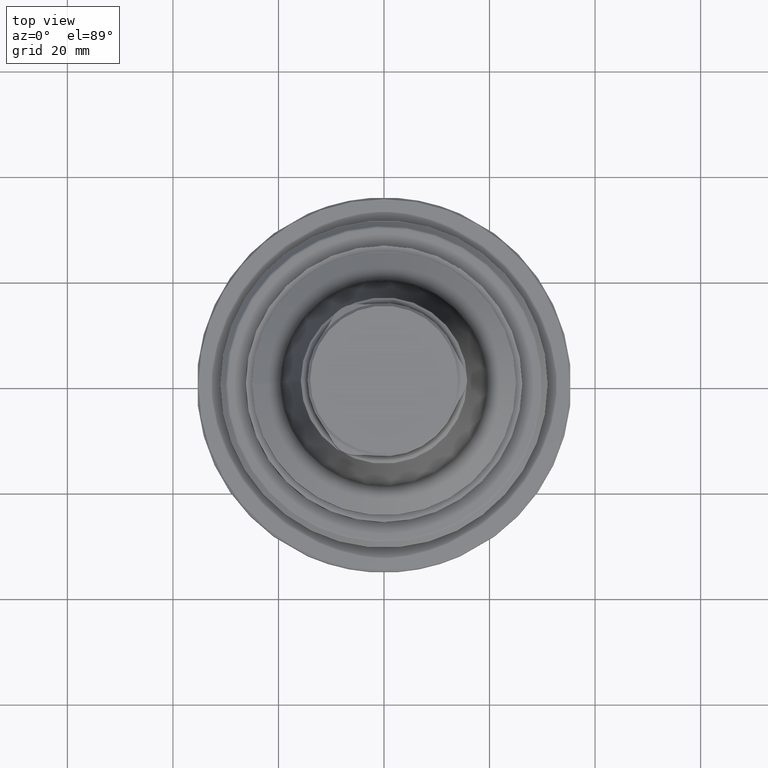
[diagram: clean part render]
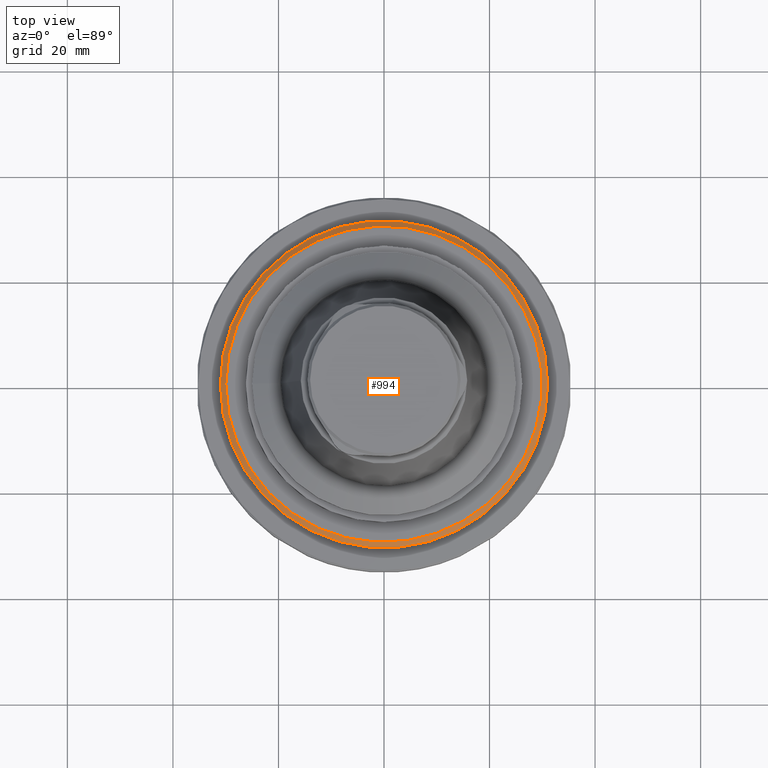
[diagram: same view with one face highlighted and labeled with its STEP entity id]
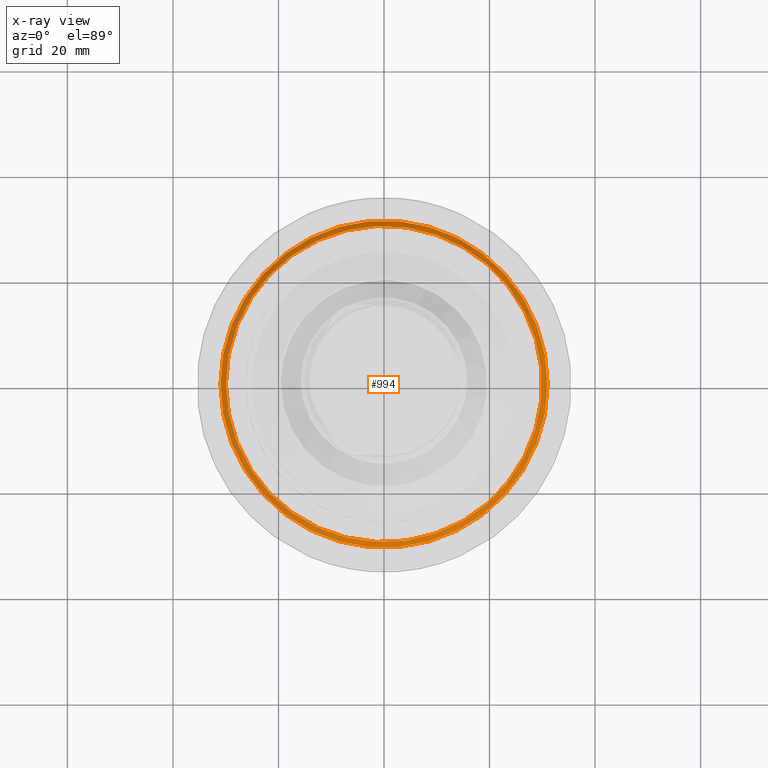
[diagram: x-ray of the same camera — body ghosted, the highlighted face saturated]
A machine part, top view. The second image highlights one B-rep face of the part: STEP entity #994.
The next image is the same camera in x-ray: the body ghosted, the highlighted face saturated — about 0% of this face is hidden behind the body in this view.
In plain terms, the highlighted conical surface has half-angle 45 deg.
Its self-contained STEP definition (entity closure, byte-faithful):
#39=CONICAL_SURFACE('',#1127,29.9757350979542,0.785398163397448);
#167=CIRCLE('',#1126,29.9757350979542);
#168=CIRCLE('',#1128,31.);
#460=ORIENTED_EDGE('',*,*,#611,.F.);
#461=ORIENTED_EDGE('',*,*,#610,.T.);
#610=EDGE_CURVE('',#709,#709,#167,.T.);
#611=EDGE_CURVE('',#710,#710,#168,.T.);
#709=VERTEX_POINT('',#1872);
#710=VERTEX_POINT('',#1875);
#796=EDGE_LOOP('',(#460));
#797=EDGE_LOOP('',(#461));
#892=FACE_BOUND('',#796,.T.);
#893=FACE_BOUND('',#797,.T.);
#994=ADVANCED_FACE('',(#892,#893),#39,.T.);
#1126=AXIS2_PLACEMENT_3D('',#1871,#1393,#1394);
#1127=AXIS2_PLACEMENT_3D('',#1873,#1395,#1396);
#1128=AXIS2_PLACEMENT_3D('',#1874,#1397,#1398);
#1393=DIRECTION('',(-5.47430718319515E-16,-9.52839907700963E-18,-1.));
#1394=DIRECTION('',(-1.,8.32667268468868E-16,5.47430716006892E-16));
#1395=DIRECTION('',(-5.47430718319515E-16,-9.52839907700963E-18,-1.));
#1396=DIRECTION('',(-1.,8.32667268468868E-16,5.47430716006892E-16));
#1397=DIRECTION('',(-5.47430718319515E-16,-9.52839907700963E-18,-1.));
#1398=DIRECTION('',(-1.,8.32667268468868E-16,5.47430716006892E-16));
#1871=CARTESIAN_POINT('',(-8.47396225545616E-14,-9.81042750554211E-14,5.32426490204586));
#1872=CARTESIAN_POINT('',(-29.9757350979542,-7.31444615910612E-14,5.32426490204587));
#1873=CARTESIAN_POINT('',(-8.47396225545616E-14,-9.81042750554211E-14,5.32426490204586));
#1874=CARTESIAN_POINT('',(-8.53003366256381E-14,-9.81140346601683E-14,4.30000000000001));
#1875=CARTESIAN_POINT('',(-31.0000000000001,-7.23013493376334E-14,4.30000000000003));